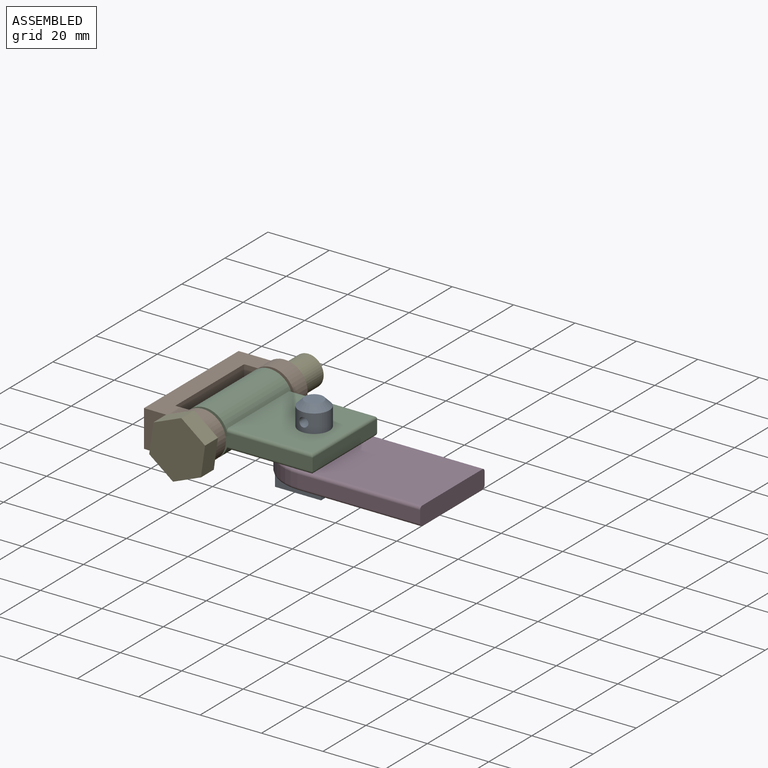
[diagram: assembled view]
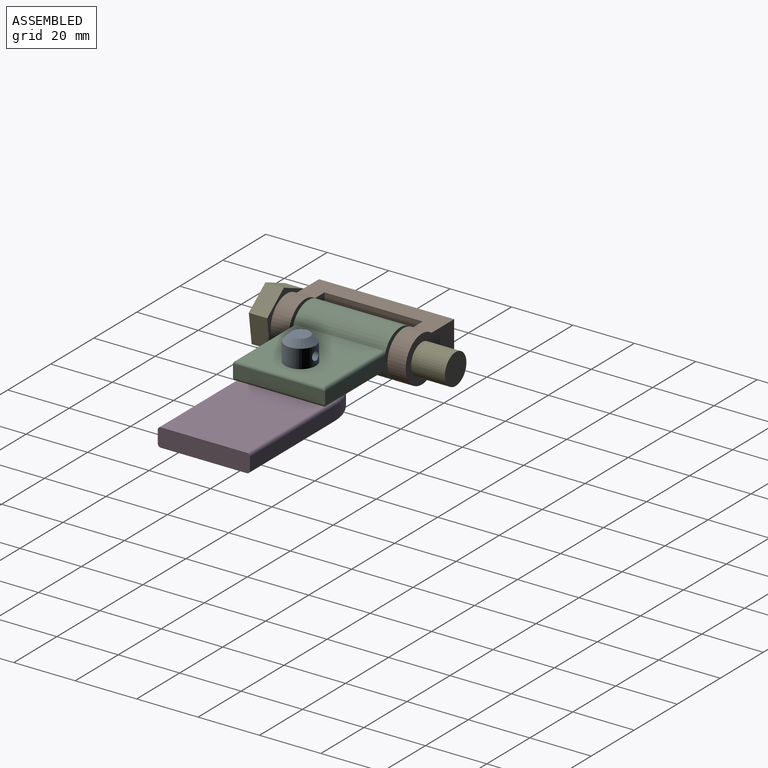
[diagram: assembled view, second angle]
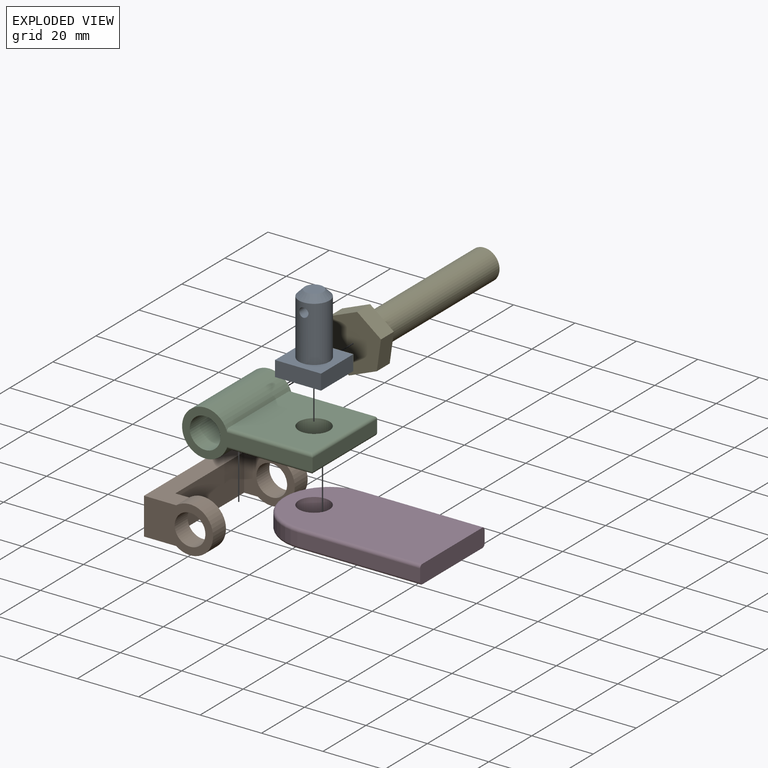
[diagram: exploded view]
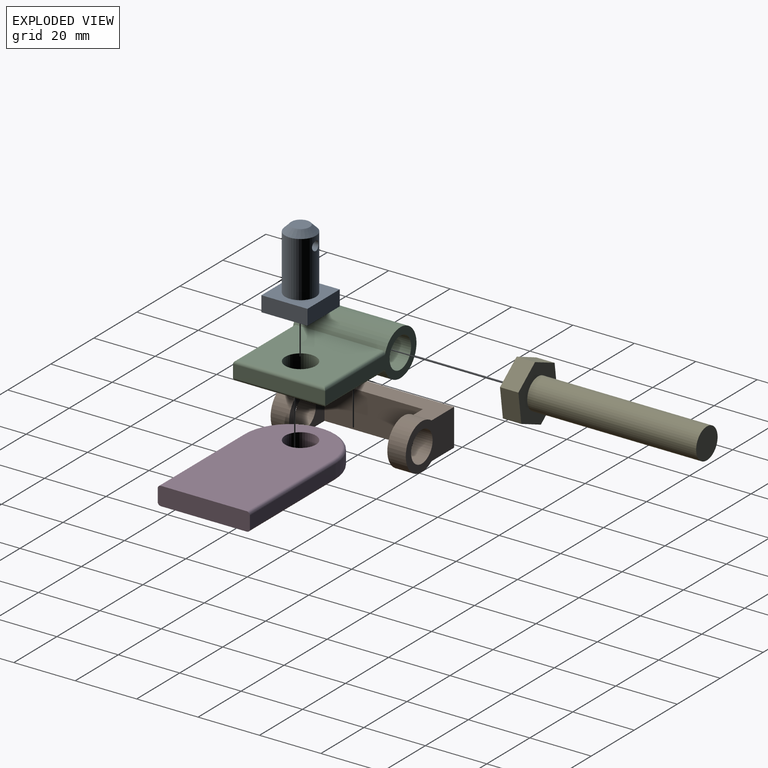
[diagram: exploded view, second angle]
ASSEMBLY  parts=5 mates=4
PART A: 10 faces, bbox 15x25x15 mm
  f0: plane 15x5mm, normal (0,0,-1), area 75mm2, adj f1,f3,f4,f5
  f1: plane 15x5mm, normal (1,0,0), area 75mm2, adj f0,f2,f4,f5
  f2: plane 15x5mm, normal (0,0,1), area 75mm2, adj f1,f3,f4,f5
  f3: plane 15x5mm, normal (-1,0,0), area 75mm2, adj f0,f2,f4,f5
  f4: plane 15x15mm, normal (0,-1,0), area 146.5mm2, adj f0,f1,f2,f3,f6
  f5: plane 15x15mm, normal (0,1,0), area 225mm2, adj f0,f1,f2,f3
  f6: cylinder r=5mm len=18mm, axis (0,1,0), area 551.2mm2, adj f4,f8,f9
  f7: plane 6x6mm, normal (0,-1,0), area 28.3mm2, adj f9
  f8: cylinder r=1.5mm len=10mm, axis (0,0,1), area 92.1mm2, adj f6
  f9: cone r=3mm half-angle=45deg, axis (0,1,0), area 71.1mm2, adj f6,f7
PART B: 12 faces, bbox 22.5x44x15 mm
  f0: plane 44x10.5mm, normal (0,0,1), area 318mm2, adj f1,f4,f5,f7,f8,f9,f10,f11
  f1: cylinder r=7.5mm len=15mm, axis (0,1,0), area 199.3mm2, adj f0,f2,f7,f10
  f2: plane 44x10.5mm, normal (0,0,-1), area 318mm2, adj f1,f4,f5,f7,f8,f9,f10,f11
  f3: cylinder r=5mm len=10mm, axis (0,1,0), area 188.5mm2, adj f7,f10
  f4: cylinder r=7.5mm len=15mm, axis (0,1,0), area 199.3mm2, adj f0,f2,f8,f11
  f5: plane 44x12mm, normal (1,0,0), area 528mm2, adj f0,f2,f7,f8
  f6: cylinder r=5mm len=10mm, axis (0,1,0), area 188.5mm2, adj f8,f11
  f7: plane 22.5x15mm, normal (0,-1,0), area 199mm2, adj f0,f1,f2,f3,f5
  f8: plane 22.5x15mm, normal (0,1,0), area 199mm2, adj f0,f2,f4,f5,f6
  f9: plane 32x12mm, normal (-1,0,0), area 384mm2, adj f0,f2,f10,f11
  f10: plane 16.5x15mm, normal (0,1,0), area 127mm2, adj f0,f1,f2,f3,f9
  f11: plane 16.5x15mm, normal (0,-1,0), area 127mm2, adj f0,f2,f4,f6,f9
PART C: 14 faces, bbox 42.5x30x15 mm
  f0: plane 28x27.13mm, normal (0,0,1), area 681mm2, adj f1,f7,f8,f9,f10
  f1: cylinder r=7.5mm len=30mm, axis (0,1,0), area 1229.5mm2, adj f0,f2,f5,f6,f8,f9,f11,f12
  f2: plane 28x27.13mm, normal (0,0,-1), area 681mm2, adj f1,f7,f11,f12,f13
  f3: plane 30x4mm, normal (1,0,0), area 120mm2, adj f5,f6,f10,f13
  f4: cylinder r=5mm len=30mm, axis (0,1,0), area 942.5mm2, adj f5,f6
  f5: plane 42.5x15mm, normal (0,-1,0), area 208.5mm2, adj f1,f3,f4,f8,f11
  f6: plane 42.5x15mm, normal (0,1,0), area 208.5mm2, adj f1,f3,f4,f9,f12
  f7: cylinder r=5mm len=10mm, axis (0,0,1), area 188.5mm2, adj f0,f2
  f8: cylinder r=1mm len=28.13mm, axis (1,0,0), area 43.4mm2, adj f0,f1,f5,f10
  f9: cylinder r=1mm len=28.13mm, axis (-1,0,0), area 43.4mm2, adj f0,f1,f6,f10
  f10: cylinder r=1mm len=30mm, axis (0,1,0), area 46mm2, adj f0,f3,f8,f9
  f11: cylinder r=1mm len=28.13mm, axis (-1,0,0), area 43.4mm2, adj f1,f2,f5,f13
  f12: cylinder r=1mm len=28.13mm, axis (1,0,0), area 43.4mm2, adj f1,f2,f6,f13
  f13: cylinder r=1mm len=30mm, axis (0,-1,0), area 46mm2, adj f2,f3,f11,f12
PART D: 13 faces, bbox 56.2x6x32.5 mm
  f0: plane 40x4mm, normal (0,0,-1), area 160mm2, adj f1,f4,f7,f10
  f1: plane 30x6mm, normal (1,0,0), area 179.1mm2, adj f0,f2,f5,f6,f7,f9,f10,f12
  f2: plane 40x4mm, normal (0,0,1), area 160mm2, adj f1,f4,f9,f12
  f3: cylinder r=5mm len=10mm, axis (0,1,0), area 188.5mm2, adj f5,f6
  f4: cylinder r=15mm len=30mm, axis (0,1,0), area 188.5mm2, adj f0,f2,f8,f11
  f5: plane 54x28mm, normal (0,-1,0), area 1349.3mm2, adj f1,f3,f10,f11,f12
  f6: plane 54x28mm, normal (0,1,0), area 1349.3mm2, adj f1,f3,f7,f8,f9
  f7: cylinder r=1mm len=40mm, axis (1,0,0), area 62.8mm2, adj f0,f1,f6,f8
  f8: torus R=14mm, axis (0,-1,0), area 72.2mm2, adj f4,f6,f7,f9
  f9: cylinder r=1mm len=40mm, axis (-1,0,0), area 62.8mm2, adj f1,f2,f6,f8
  f10: cylinder r=1mm len=40mm, axis (-1,0,0), area 62.8mm2, adj f0,f1,f5,f11
  f11: torus R=14mm, axis (0,-1,0), area 72.2mm2, adj f4,f5,f10,f12
  f12: cylinder r=1mm len=40mm, axis (1,0,0), area 62.8mm2, adj f1,f2,f5,f11
PART E: 10 faces, bbox 18.2x61x19.4 mm
  f0: plane 7.74x6.03mm, normal (0.61,0,-0.79), area 58.9mm2, adj f1,f5,f6,f7
  f1: plane 9.72x6mm, normal (0.99,0,0.14), area 58.9mm2, adj f0,f2,f6,f7
  f2: plane 9.1x6mm, normal (0.38,0,0.93), area 58.9mm2, adj f1,f3,f6,f7
  f3: plane 7.74x6.03mm, normal (-0.61,0,0.79), area 58.9mm2, adj f2,f4,f6,f7
  f4: plane 9.72x6mm, normal (-0.99,0,-0.14), area 58.9mm2, adj f3,f5,f6,f7
  f5: plane 9.1x6mm, normal (-0.38,0,-0.93), area 58.9mm2, adj f0,f4,f6,f7
  f6: plane 19.44x18.19mm, normal (0,-1,0), area 171.7mm2, adj f0,f1,f2,f3,f4,f5,f8
  f7: plane 19.44x18.19mm, normal (0,1,0), area 250.3mm2, adj f0,f1,f2,f3,f4,f5
  f8: cylinder r=5mm len=55mm, axis (0,1,0), area 1727.9mm2, adj f6,f9
  f9: plane 10x10mm, normal (0,-1,0), area 78.5mm2, adj f8
PLACE A rot(axis=(-1,0,0),90deg) t=(6.96,0.22,-7.79)mm
PLACE B rot(axis=(0,1,0),180deg) t=(-18.04,0.22,6.21)mm
PLACE C t=(-18.04,0.22,6.21)mm fixed
PLACE D rot(axis=(1,0,0),90deg) t=(31.96,0.22,0.21)mm
PLACE E rot(axis=(1,0,0),180deg) t=(-18.04,-27.78,6.21)mm
MATE revolute C.f7 <-> D.f3  axis (0,0,-1) through (6.96,0.22,3.21)mm
MATE fastened D.f3 <-> A.f6  axis (0,0,-1) through (6.96,0.22,-2.79)mm
MATE fastened B.f3 <-> E.f8  axis (0,-1,0) through (-18.04,-21.78,6.21)mm
MATE revolute C.f4 <-> B.f3  axis (0,-1,0) through (-18.04,-14.78,6.21)mm
